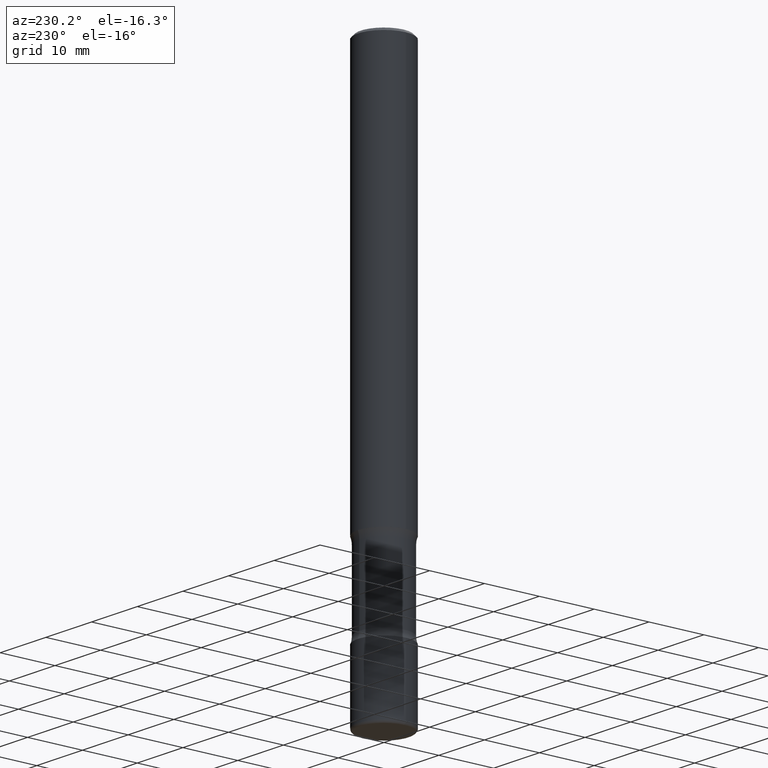
[diagram: clean part render]
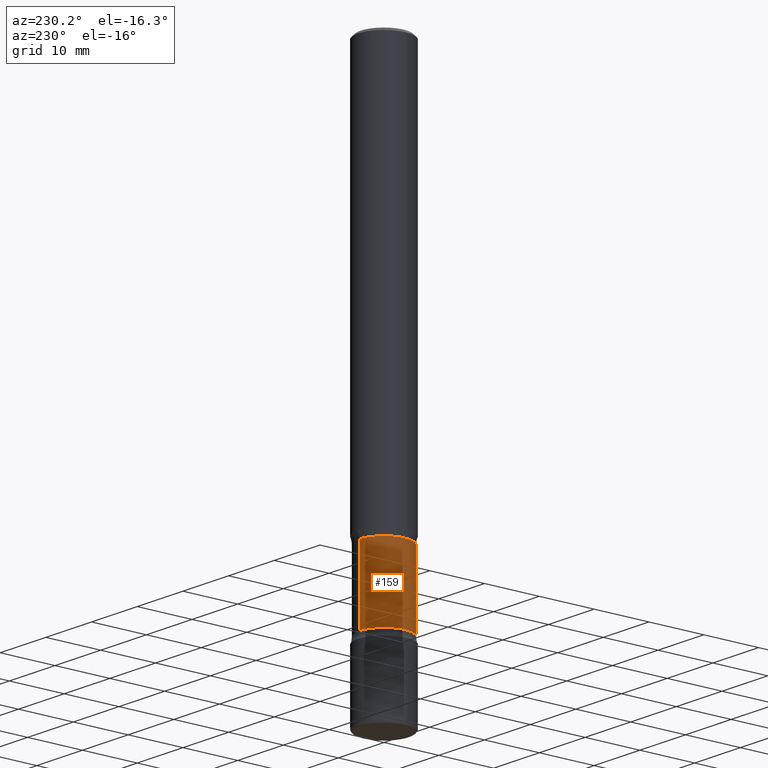
[diagram: same view with one face highlighted and labeled with its STEP entity id]
A machine part, auxiliary view. The second image highlights one B-rep face of the part: STEP entity #159.
In plain terms, the highlighted cylindrical surface (edge-blend (fillet) strip) has radius 4.5085 mm, axis along (0, -0, -1).
Its self-contained STEP definition (entity closure, byte-faithful):
#13 = VERTEX_POINT ( 'NONE', #390 ) ;
#21 = DIRECTION ( 'NONE',  ( 6.982962677686265922E-15, 1.000000000000000000, -3.078138584410440285E-15 ) ) ;
#42 = CARTESIAN_POINT ( 'NONE',  ( -1.252040884593220094E-15, -0.1775000000000120093, -3.451010205144334986 ) ) ;
#52 = DIRECTION ( 'NONE',  ( 2.052439932101464102E-29, -4.054321056345256912E-15, -1.000000000000000000 ) ) ;
#58 = CIRCLE ( 'NONE', #426, 0.1774999999999999911 ) ;
#69 = CIRCLE ( 'NONE', #261, 0.1774999999999996303 ) ;
#73 = EDGE_CURVE ( 'NONE', #13, #397, #69, .T. ) ;
#100 = AXIS2_PLACEMENT_3D ( 'NONE', #374, #439, #21 ) ;
#113 = DIRECTION ( 'NONE',  ( 6.982962677686265922E-15, 1.000000000000000000, -3.078138584410437524E-15 ) ) ;
#118 = DIRECTION ( 'NONE',  ( 2.052439932101463822E-29, -4.054321056345256912E-15, -1.000000000000000000 ) ) ;
#134 = VECTOR ( 'NONE', #52, 39.37007874015748143 ) ;
#159 = ADVANCED_FACE ( 'NONE', ( #545 ), #316, .T. ) ;
#166 = DIRECTION ( 'NONE',  ( 2.052439932101464102E-29, -4.054321056345256912E-15, -1.000000000000000000 ) ) ;
#213 = EDGE_CURVE ( 'NONE', #356, #489, #58, .T. ) ;
#243 = DIRECTION ( 'NONE',  ( 6.982962677686266711E-15, 1.000000000000000000, -3.078138584410443835E-15 ) ) ;
#252 = CARTESIAN_POINT ( 'NONE',  ( 1.239475875289406768E-15, 0.1774999999999855860, -4.000000000000001776 ) ) ;
#260 = LINE ( 'NONE', #252, #134 ) ;
#261 = AXIS2_PLACEMENT_3D ( 'NONE', #507, #556, #243 ) ;
#307 = ORIENTED_EDGE ( 'NONE', *, *, #73, .T. ) ;
#313 = ORIENTED_EDGE ( 'NONE', *, *, #474, .F. ) ;
#316 = CYLINDRICAL_SURFACE ( 'NONE', #100, 0.1774999999999998246 ) ;
#348 = EDGE_LOOP ( 'NONE', ( #313, #307, #363, #477 ) ) ;
#356 = VERTEX_POINT ( 'NONE', #42 ) ;
#363 = ORIENTED_EDGE ( 'NONE', *, *, #436, .T. ) ;
#374 = CARTESIAN_POINT ( 'NONE',  ( 9.585360787698712522E-29, -1.424734521412364332E-14, -4.000000000000000888 ) ) ;
#390 = CARTESIAN_POINT ( 'NONE',  ( -1.252040884593229560E-15, -0.1775000000000095113, -2.923989794855663682 ) ) ;
#397 = VERTEX_POINT ( 'NONE', #559 ) ;
#426 = AXIS2_PLACEMENT_3D ( 'NONE', #512, #118, #113 ) ;
#430 = LINE ( 'NONE', #438, #549 ) ;
#436 = EDGE_CURVE ( 'NONE', #397, #489, #260, .T. ) ;
#438 = CARTESIAN_POINT ( 'NONE',  ( -1.217738394604349609E-15, -0.1775000000000140632, -4.000000000000000888 ) ) ;
#439 = DIRECTION ( 'NONE',  ( 2.052439932101463822E-29, -4.054321056345256912E-15, -1.000000000000000000 ) ) ;
#474 = EDGE_CURVE ( 'NONE', #13, #356, #430, .T. ) ;
#477 = ORIENTED_EDGE ( 'NONE', *, *, #213, .F. ) ;
#489 = VERTEX_POINT ( 'NONE', #522 ) ;
#507 = CARTESIAN_POINT ( 'NONE',  ( 7.376914475311787671E-29, -9.884854382564577022E-15, -2.923989794855664126 ) ) ;
#512 = CARTESIAN_POINT ( 'NONE',  ( 8.458592210420752426E-29, -1.202156432912165511E-14, -3.451010205144335430 ) ) ;
#522 = CARTESIAN_POINT ( 'NONE',  ( 1.239475875289396907E-15, 0.1774999999999879730, -3.451010205144335874 ) ) ;
#545 = FACE_OUTER_BOUND ( 'NONE', #348, .T. ) ;
#549 = VECTOR ( 'NONE', #166, 39.37007874015748143 ) ;
#556 = DIRECTION ( 'NONE',  ( 2.052439932101463822E-29, -4.054321056345256912E-15, -1.000000000000000000 ) ) ;
#559 = CARTESIAN_POINT ( 'NONE',  ( 1.239475875289383496E-15, 0.1774999999999897771, -2.923989794855664570 ) ) ;